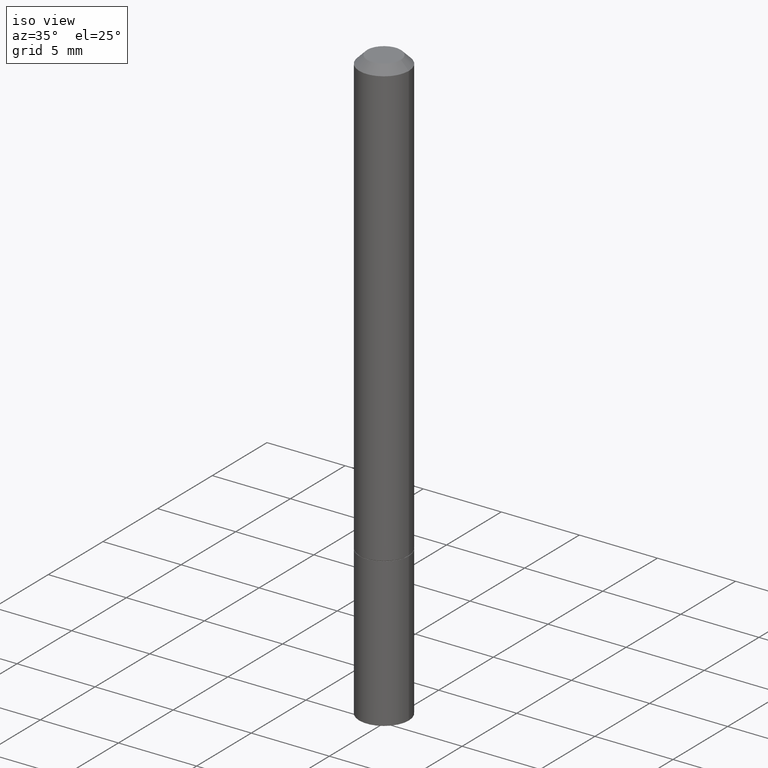
[diagram: clean part render]
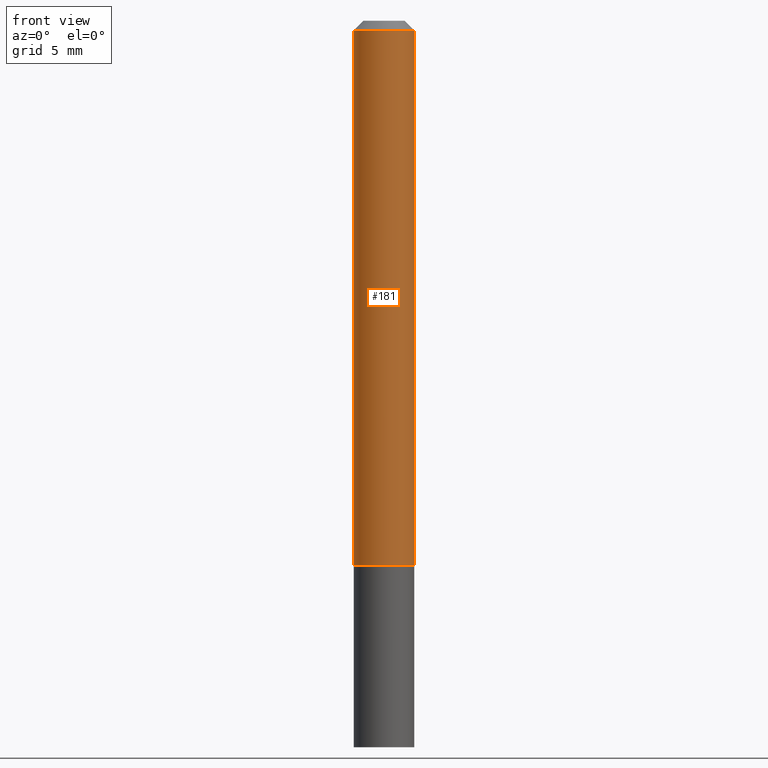
[diagram: tour spotlight — one face highlighted and labeled with its STEP entity id]
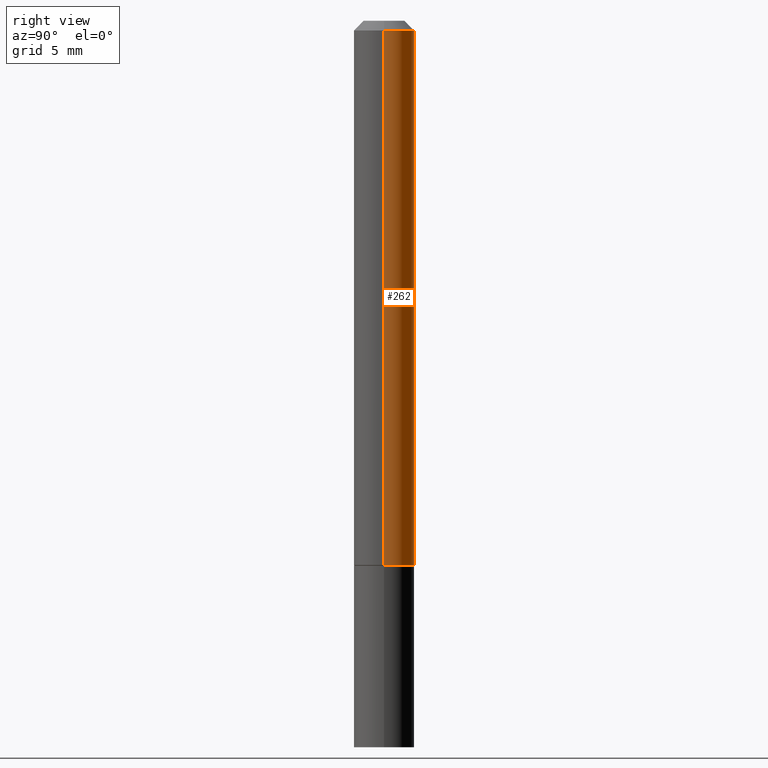
[diagram: tour spotlight — one face highlighted and labeled with its STEP entity id]
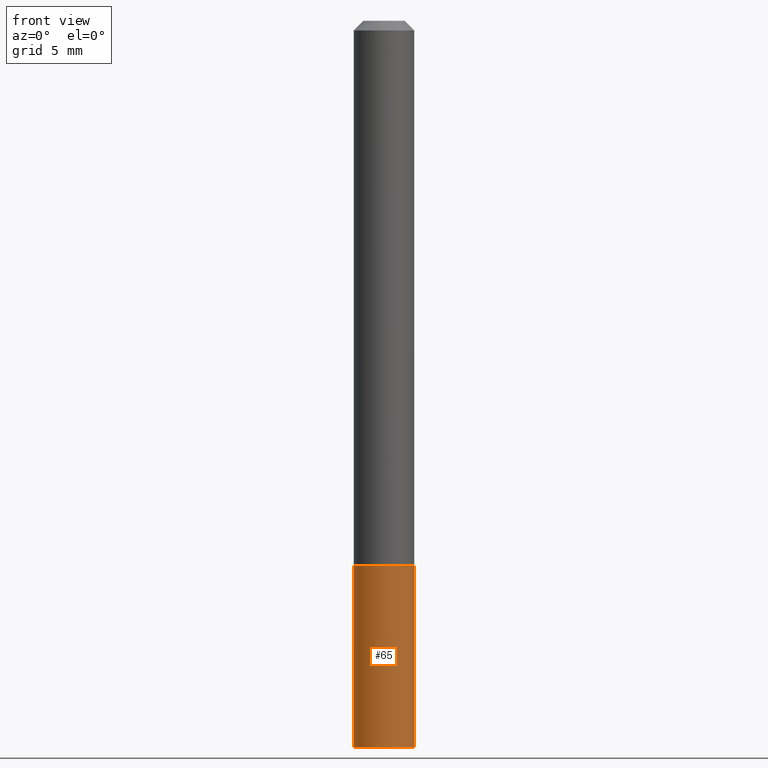
[diagram: tour spotlight — one face highlighted and labeled with its STEP entity id]
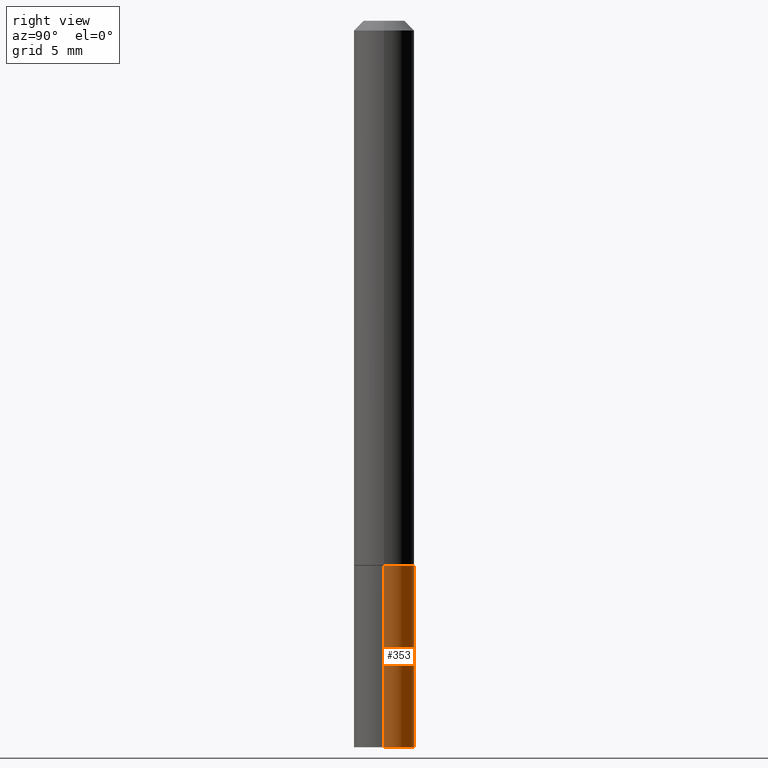
[diagram: tour spotlight — one face highlighted and labeled with its STEP entity id]
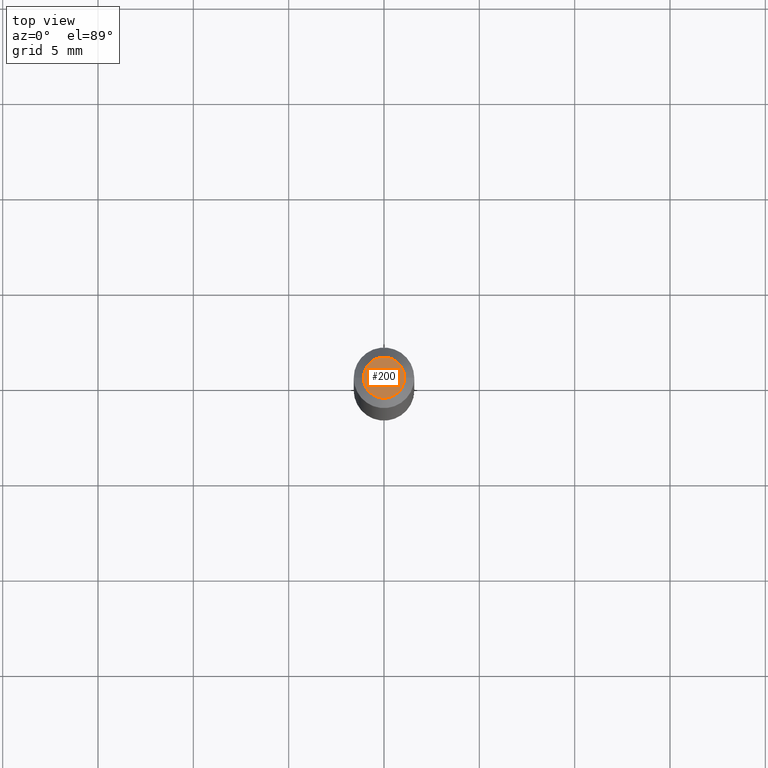
[diagram: tour spotlight — one face highlighted and labeled with its STEP entity id]
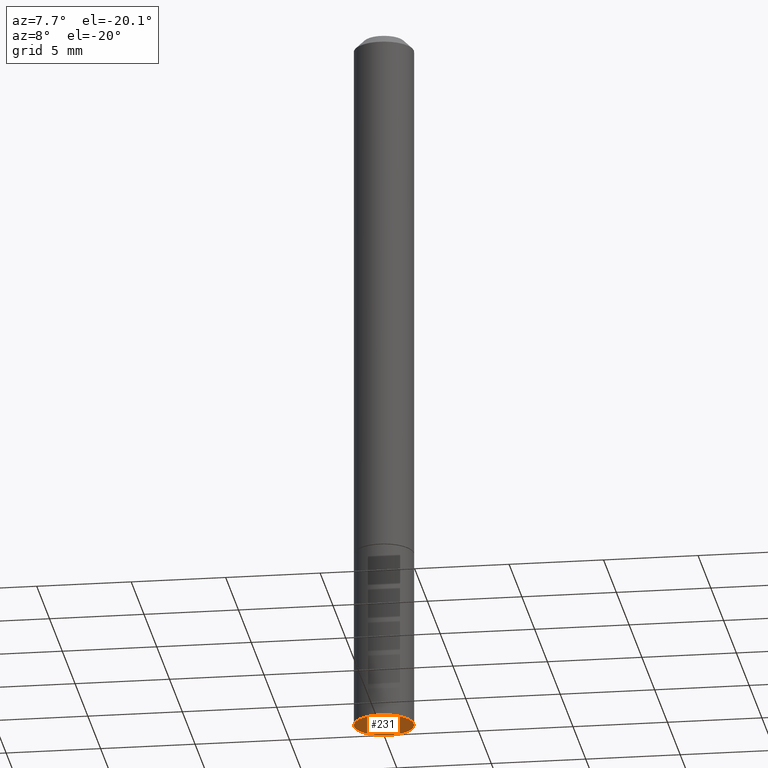
[diagram: tour spotlight — one face highlighted and labeled with its STEP entity id]
A machine part: a face-by-face anatomy tour. The part has 12 B-rep faces; the first image is the clean iso view, then the 6 largest visible faces are spotlighted one at a time (largest first), each with its STEP entity span.

Face 1 — front view, entity #181. In plain terms, the highlighted cylindrical surface (edge-blend (fillet) strip) has radius 1.5875 mm, axis along (-0, 0, 1).
Definition (entity closure, byte-faithful):
#7 = LINE ( 'NONE', #36, #360 ) ;
#9 = DIRECTION ( 'NONE',  ( 1.000000000000000000, -6.982962677686269077E-15, 0.000000000000000000 ) ) ;
#11 = DIRECTION ( 'NONE',  ( -2.445468806185136877E-29, 3.491481338843145188E-15, 1.000000000000000000 ) ) ;
#36 = CARTESIAN_POINT ( 'NONE',  ( -0.06249999999999995143, 4.440892098500622710E-16, -3.074334431409313661E-30 ) ) ;
#40 = VECTOR ( 'NONE', #183, 39.37007874015748143 ) ;
#42 = CARTESIAN_POINT ( 'NONE',  ( 0.06249999999999995143, -4.364351673553913243E-16, 3.047610484872457418E-30 ) ) ;
#49 = DIRECTION ( 'NONE',  ( 1.000000000000000000, -6.982962677686266711E-15, 4.876176775795935793E-29 ) ) ;
#61 = CARTESIAN_POINT ( 'NONE',  ( 2.748706938152094189E-29, -3.924425024859697006E-15, -1.124000000000000332 ) ) ;
#77 = ORIENTED_EDGE ( 'NONE', *, *, #119, .F. ) ;
#91 = EDGE_CURVE ( 'NONE', #290, #248, #103, .T. ) ;
#103 = LINE ( 'NONE', #42, #40 ) ;
#104 = EDGE_CURVE ( 'NONE', #289, #290, #110, .T. ) ;
#107 = AXIS2_PLACEMENT_3D ( 'NONE', #61, #348, #9 ) ;
#110 = CIRCLE ( 'NONE', #107, 0.06250000000000001388 ) ;
#119 = EDGE_CURVE ( 'NONE', #289, #206, #7, .T. ) ;
#168 = ORIENTED_EDGE ( 'NONE', *, *, #91, .T. ) ;
#175 = ORIENTED_EDGE ( 'NONE', *, *, #349, .F. ) ;
#178 = CARTESIAN_POINT ( 'NONE',  ( 0.000000000000000000, 0.000000000000000000, 0.000000000000000000 ) ) ;
#181 = ADVANCED_FACE ( 'NONE', ( #320 ), #243, .T. ) ;
#183 = DIRECTION ( 'NONE',  ( -2.445468806185136877E-29, 3.491481338843145188E-15, 1.000000000000000000 ) ) ;
#184 = DIRECTION ( 'NONE',  ( 1.000000000000000000, -6.982962677686266711E-15, 0.000000000000000000 ) ) ;
#193 = CARTESIAN_POINT ( 'NONE',  ( 0.06249999999999988204, -4.986107516375829362E-16, -0.02000000000000004552 ) ) ;
#203 = CIRCLE ( 'NONE', #352, 0.06249999999999988204 ) ;
#206 = VERTEX_POINT ( 'NONE', #308 ) ;
#225 = ORIENTED_EDGE ( 'NONE', *, *, #104, .T. ) ;
#243 = CYLINDRICAL_SURFACE ( 'NONE', #298, 0.06249999999999995143 ) ;
#248 = VERTEX_POINT ( 'NONE', #193 ) ;
#260 = CARTESIAN_POINT ( 'NONE',  ( 0.06250000000000001388, -4.360860192215088675E-15, -1.124000000000000332 ) ) ;
#269 = DIRECTION ( 'NONE',  ( -2.445468806185136597E-29, 3.491481338843145583E-15, 1.000000000000000000 ) ) ;
#271 = CARTESIAN_POINT ( 'NONE',  ( 4.890937612370284544E-31, -6.982962677686307633E-17, -0.02000000000000004552 ) ) ;
#289 = VERTEX_POINT ( 'NONE', #310 ) ;
#290 = VERTEX_POINT ( 'NONE', #260 ) ;
#292 = DIRECTION ( 'NONE',  ( -2.445468806185136597E-29, 3.491481338843145583E-15, 1.000000000000000000 ) ) ;
#298 = AXIS2_PLACEMENT_3D ( 'NONE', #178, #269, #49 ) ;
#308 = CARTESIAN_POINT ( 'NONE',  ( -0.06249999999999988204, 3.666055405785277303E-16, -0.02000000000000004552 ) ) ;
#310 = CARTESIAN_POINT ( 'NONE',  ( -0.06250000000000001388, -1.553038115968215367E-15, -1.124000000000000332 ) ) ;
#320 = FACE_OUTER_BOUND ( 'NONE', #358, .T. ) ;
#348 = DIRECTION ( 'NONE',  ( -2.445468806185136597E-29, 3.491481338843145583E-15, 1.000000000000000000 ) ) ;
#349 = EDGE_CURVE ( 'NONE', #206, #248, #203, .T. ) ;
#352 = AXIS2_PLACEMENT_3D ( 'NONE', #271, #292, #184 ) ;
#358 = EDGE_LOOP ( 'NONE', ( #77, #225, #168, #175 ) ) ;
#360 = VECTOR ( 'NONE', #11, 39.37007874015748143 ) ;

Face 2 — right view, entity #262. In plain terms, the highlighted cylindrical surface (edge-blend (fillet) strip) has radius 1.5875 mm, axis along (-0, 0, 1).
Definition (entity closure, byte-faithful):
#7 = LINE ( 'NONE', #36, #360 ) ;
#11 = DIRECTION ( 'NONE',  ( -2.445468806185136877E-29, 3.491481338843145188E-15, 1.000000000000000000 ) ) ;
#12 = CIRCLE ( 'NONE', #30, 0.06249999999999988204 ) ;
#16 = ORIENTED_EDGE ( 'NONE', *, *, #59, .F. ) ;
#30 = AXIS2_PLACEMENT_3D ( 'NONE', #105, #126, #100 ) ;
#36 = CARTESIAN_POINT ( 'NONE',  ( -0.06249999999999995143, 4.440892098500622710E-16, -3.074334431409313661E-30 ) ) ;
#40 = VECTOR ( 'NONE', #183, 39.37007874015748143 ) ;
#42 = CARTESIAN_POINT ( 'NONE',  ( 0.06249999999999995143, -4.364351673553913243E-16, 3.047610484872457418E-30 ) ) ;
#46 = DIRECTION ( 'NONE',  ( -2.445468806185136597E-29, 3.491481338843145583E-15, 1.000000000000000000 ) ) ;
#48 = AXIS2_PLACEMENT_3D ( 'NONE', #190, #46, #162 ) ;
#59 = EDGE_CURVE ( 'NONE', #248, #206, #12, .T. ) ;
#66 = DIRECTION ( 'NONE',  ( -2.445468806185136597E-29, 3.491481338843145583E-15, 1.000000000000000000 ) ) ;
#91 = EDGE_CURVE ( 'NONE', #290, #248, #103, .T. ) ;
#100 = DIRECTION ( 'NONE',  ( 1.000000000000000000, -6.982962677686266711E-15, 0.000000000000000000 ) ) ;
#103 = LINE ( 'NONE', #42, #40 ) ;
#105 = CARTESIAN_POINT ( 'NONE',  ( 4.890937612370284544E-31, -6.982962677686307633E-17, -0.02000000000000004552 ) ) ;
#112 = ORIENTED_EDGE ( 'NONE', *, *, #119, .T. ) ;
#119 = EDGE_CURVE ( 'NONE', #289, #206, #7, .T. ) ;
#126 = DIRECTION ( 'NONE',  ( -2.445468806185136597E-29, 3.491481338843145583E-15, 1.000000000000000000 ) ) ;
#129 = CIRCLE ( 'NONE', #223, 0.06250000000000001388 ) ;
#162 = DIRECTION ( 'NONE',  ( 1.000000000000000000, -6.982962677686266711E-15, 4.876176775795935793E-29 ) ) ;
#183 = DIRECTION ( 'NONE',  ( -2.445468806185136877E-29, 3.491481338843145188E-15, 1.000000000000000000 ) ) ;
#190 = CARTESIAN_POINT ( 'NONE',  ( 0.000000000000000000, 0.000000000000000000, 0.000000000000000000 ) ) ;
#193 = CARTESIAN_POINT ( 'NONE',  ( 0.06249999999999988204, -4.986107516375829362E-16, -0.02000000000000004552 ) ) ;
#206 = VERTEX_POINT ( 'NONE', #308 ) ;
#223 = AXIS2_PLACEMENT_3D ( 'NONE', #229, #66, #293 ) ;
#229 = CARTESIAN_POINT ( 'NONE',  ( 2.748706938152094189E-29, -3.924425024859697006E-15, -1.124000000000000332 ) ) ;
#235 = EDGE_LOOP ( 'NONE', ( #261, #112, #16, #338 ) ) ;
#248 = VERTEX_POINT ( 'NONE', #193 ) ;
#260 = CARTESIAN_POINT ( 'NONE',  ( 0.06250000000000001388, -4.360860192215088675E-15, -1.124000000000000332 ) ) ;
#261 = ORIENTED_EDGE ( 'NONE', *, *, #297, .T. ) ;
#262 = ADVANCED_FACE ( 'NONE', ( #274 ), #329, .T. ) ;
#274 = FACE_OUTER_BOUND ( 'NONE', #235, .T. ) ;
#289 = VERTEX_POINT ( 'NONE', #310 ) ;
#290 = VERTEX_POINT ( 'NONE', #260 ) ;
#293 = DIRECTION ( 'NONE',  ( 1.000000000000000000, -6.982962677686269077E-15, 0.000000000000000000 ) ) ;
#297 = EDGE_CURVE ( 'NONE', #290, #289, #129, .T. ) ;
#308 = CARTESIAN_POINT ( 'NONE',  ( -0.06249999999999988204, 3.666055405785277303E-16, -0.02000000000000004552 ) ) ;
#310 = CARTESIAN_POINT ( 'NONE',  ( -0.06250000000000001388, -1.553038115968215367E-15, -1.124000000000000332 ) ) ;
#329 = CYLINDRICAL_SURFACE ( 'NONE', #48, 0.06249999999999995143 ) ;
#338 = ORIENTED_EDGE ( 'NONE', *, *, #91, .F. ) ;
#360 = VECTOR ( 'NONE', #11, 39.37007874015748143 ) ;

Face 3 — front view, entity #65. In plain terms, the highlighted cylindrical surface (edge-blend (fillet) strip) has radius 1.5875 mm, axis along (-0, 0, 1).
Definition (entity closure, byte-faithful):
#15 = DIRECTION ( 'NONE',  ( 1.000000000000000000, -6.982962677686269077E-15, 0.000000000000000000 ) ) ;
#32 = VERTEX_POINT ( 'NONE', #97 ) ;
#41 = CARTESIAN_POINT ( 'NONE',  ( -0.06250000000000001388, -4.138480047381567268E-15, -1.125000000000000444 ) ) ;
#60 = ORIENTED_EDGE ( 'NONE', *, *, #238, .F. ) ;
#65 = ADVANCED_FACE ( 'NONE', ( #322 ), #67, .T. ) ;
#67 = CYLINDRICAL_SURFACE ( 'NONE', #234, 0.06250000000000001388 ) ;
#70 = DIRECTION ( 'NONE',  ( 1.000000000000000000, -6.982962677686261189E-15, 0.000000000000000000 ) ) ;
#74 = CARTESIAN_POINT ( 'NONE',  ( -0.06250000000000001388, 4.440892098500627148E-16, -3.074334431409317165E-30 ) ) ;
#81 = ORIENTED_EDGE ( 'NONE', *, *, #123, .T. ) ;
#97 = CARTESIAN_POINT ( 'NONE',  ( 0.06250000000000001388, -4.364351673553932471E-15, -1.125000000000000444 ) ) ;
#123 = EDGE_CURVE ( 'NONE', #142, #138, #149, .T. ) ;
#124 = DIRECTION ( 'NONE',  ( -2.445468806185136597E-29, 3.491481338843145583E-15, 1.000000000000000000 ) ) ;
#128 = CARTESIAN_POINT ( 'NONE',  ( -0.06250000000000001388, -4.138480047381567268E-15, -1.500000000000000444 ) ) ;
#135 = LINE ( 'NONE', #74, #339 ) ;
#138 = VERTEX_POINT ( 'NONE', #185 ) ;
#142 = VERTEX_POINT ( 'NONE', #128 ) ;
#145 = AXIS2_PLACEMENT_3D ( 'NONE', #304, #191, #15 ) ;
#146 = ORIENTED_EDGE ( 'NONE', *, *, #187, .F. ) ;
#149 = CIRCLE ( 'NONE', #321, 0.06250000000000001388 ) ;
#154 = CARTESIAN_POINT ( 'NONE',  ( 3.668203209277706016E-29, -5.237222008264719754E-15, -1.500000000000000444 ) ) ;
#166 = DIRECTION ( 'NONE',  ( -2.445468806185136877E-29, 3.491481338843145188E-15, 1.000000000000000000 ) ) ;
#170 = ORIENTED_EDGE ( 'NONE', *, *, #195, .T. ) ;
#185 = CARTESIAN_POINT ( 'NONE',  ( 0.06250000000000001388, -5.673657175620110635E-15, -1.500000000000000444 ) ) ;
#187 = EDGE_CURVE ( 'NONE', #332, #32, #305, .T. ) ;
#191 = DIRECTION ( 'NONE',  ( -2.445468806185136597E-29, 3.491481338843145583E-15, 1.000000000000000000 ) ) ;
#194 = EDGE_LOOP ( 'NONE', ( #60, #81, #170, #146 ) ) ;
#195 = EDGE_CURVE ( 'NONE', #138, #32, #196, .T. ) ;
#196 = LINE ( 'NONE', #306, #314 ) ;
#216 = CARTESIAN_POINT ( 'NONE',  ( 0.000000000000000000, 0.000000000000000000, 0.000000000000000000 ) ) ;
#234 = AXIS2_PLACEMENT_3D ( 'NONE', #216, #240, #351 ) ;
#238 = EDGE_CURVE ( 'NONE', #142, #332, #135, .T. ) ;
#240 = DIRECTION ( 'NONE',  ( -2.445468806185136597E-29, 3.491481338843145583E-15, 1.000000000000000000 ) ) ;
#250 = DIRECTION ( 'NONE',  ( -2.445468806185136877E-29, 3.491481338843145188E-15, 1.000000000000000000 ) ) ;
#304 = CARTESIAN_POINT ( 'NONE',  ( 2.751152406958279792E-29, -3.927916506198540013E-15, -1.125000000000000444 ) ) ;
#305 = CIRCLE ( 'NONE', #145, 0.06250000000000001388 ) ;
#306 = CARTESIAN_POINT ( 'NONE',  ( 0.06250000000000001388, -4.364351673553918173E-16, 3.047610484872460571E-30 ) ) ;
#314 = VECTOR ( 'NONE', #166, 39.37007874015748143 ) ;
#321 = AXIS2_PLACEMENT_3D ( 'NONE', #154, #124, #70 ) ;
#322 = FACE_OUTER_BOUND ( 'NONE', #194, .T. ) ;
#332 = VERTEX_POINT ( 'NONE', #41 ) ;
#339 = VECTOR ( 'NONE', #250, 39.37007874015748143 ) ;
#351 = DIRECTION ( 'NONE',  ( 1.000000000000000000, -6.982962677686267499E-15, 4.876176775795935793E-29 ) ) ;

Face 4 — right view, entity #353. In plain terms, the highlighted cylindrical surface (edge-blend (fillet) strip) has radius 1.5875 mm, axis along (-0, 0, 1).
Definition (entity closure, byte-faithful):
#13 = DIRECTION ( 'NONE',  ( -2.445468806185136597E-29, 3.491481338843145583E-15, 1.000000000000000000 ) ) ;
#14 = CARTESIAN_POINT ( 'NONE',  ( 3.668203209277706016E-29, -5.237222008264719754E-15, -1.500000000000000444 ) ) ;
#32 = VERTEX_POINT ( 'NONE', #97 ) ;
#37 = FACE_OUTER_BOUND ( 'NONE', #130, .T. ) ;
#41 = CARTESIAN_POINT ( 'NONE',  ( -0.06250000000000001388, -4.138480047381567268E-15, -1.125000000000000444 ) ) ;
#63 = AXIS2_PLACEMENT_3D ( 'NONE', #159, #13, #68 ) ;
#68 = DIRECTION ( 'NONE',  ( 1.000000000000000000, -6.982962677686267499E-15, 4.876176775795935793E-29 ) ) ;
#74 = CARTESIAN_POINT ( 'NONE',  ( -0.06250000000000001388, 4.440892098500627148E-16, -3.074334431409317165E-30 ) ) ;
#94 = ORIENTED_EDGE ( 'NONE', *, *, #195, .F. ) ;
#97 = CARTESIAN_POINT ( 'NONE',  ( 0.06250000000000001388, -4.364351673553932471E-15, -1.125000000000000444 ) ) ;
#101 = CIRCLE ( 'NONE', #163, 0.06250000000000001388 ) ;
#102 = CARTESIAN_POINT ( 'NONE',  ( 2.751152406958279792E-29, -3.927916506198540013E-15, -1.125000000000000444 ) ) ;
#125 = CYLINDRICAL_SURFACE ( 'NONE', #63, 0.06250000000000001388 ) ;
#128 = CARTESIAN_POINT ( 'NONE',  ( -0.06250000000000001388, -4.138480047381567268E-15, -1.500000000000000444 ) ) ;
#130 = EDGE_LOOP ( 'NONE', ( #265, #366, #282, #94 ) ) ;
#131 = EDGE_CURVE ( 'NONE', #138, #142, #101, .T. ) ;
#135 = LINE ( 'NONE', #74, #339 ) ;
#138 = VERTEX_POINT ( 'NONE', #185 ) ;
#140 = CIRCLE ( 'NONE', #199, 0.06250000000000001388 ) ;
#142 = VERTEX_POINT ( 'NONE', #128 ) ;
#152 = EDGE_CURVE ( 'NONE', #32, #332, #140, .T. ) ;
#159 = CARTESIAN_POINT ( 'NONE',  ( 0.000000000000000000, 0.000000000000000000, 0.000000000000000000 ) ) ;
#163 = AXIS2_PLACEMENT_3D ( 'NONE', #14, #318, #237 ) ;
#166 = DIRECTION ( 'NONE',  ( -2.445468806185136877E-29, 3.491481338843145188E-15, 1.000000000000000000 ) ) ;
#185 = CARTESIAN_POINT ( 'NONE',  ( 0.06250000000000001388, -5.673657175620110635E-15, -1.500000000000000444 ) ) ;
#195 = EDGE_CURVE ( 'NONE', #138, #32, #196, .T. ) ;
#196 = LINE ( 'NONE', #306, #314 ) ;
#199 = AXIS2_PLACEMENT_3D ( 'NONE', #102, #295, #211 ) ;
#211 = DIRECTION ( 'NONE',  ( 1.000000000000000000, -6.982962677686269077E-15, 0.000000000000000000 ) ) ;
#237 = DIRECTION ( 'NONE',  ( 1.000000000000000000, -6.982962677686261189E-15, 0.000000000000000000 ) ) ;
#238 = EDGE_CURVE ( 'NONE', #142, #332, #135, .T. ) ;
#250 = DIRECTION ( 'NONE',  ( -2.445468806185136877E-29, 3.491481338843145188E-15, 1.000000000000000000 ) ) ;
#265 = ORIENTED_EDGE ( 'NONE', *, *, #131, .T. ) ;
#282 = ORIENTED_EDGE ( 'NONE', *, *, #152, .F. ) ;
#295 = DIRECTION ( 'NONE',  ( -2.445468806185136597E-29, 3.491481338843145583E-15, 1.000000000000000000 ) ) ;
#306 = CARTESIAN_POINT ( 'NONE',  ( 0.06250000000000001388, -4.364351673553918173E-16, 3.047610484872460571E-30 ) ) ;
#314 = VECTOR ( 'NONE', #166, 39.37007874015748143 ) ;
#318 = DIRECTION ( 'NONE',  ( -2.445468806185136597E-29, 3.491481338843145583E-15, 1.000000000000000000 ) ) ;
#332 = VERTEX_POINT ( 'NONE', #41 ) ;
#339 = VECTOR ( 'NONE', #250, 39.37007874015748143 ) ;
#353 = ADVANCED_FACE ( 'NONE', ( #37 ), #125, .T. ) ;
#366 = ORIENTED_EDGE ( 'NONE', *, *, #238, .T. ) ;

Face 5 — top view, entity #200. In plain terms, the highlighted planar face has unit normal (0, -0, -1).
Definition (entity closure, byte-faithful):
#10 = DIRECTION ( 'NONE',  ( 1.000000000000000000, -6.982962677686267499E-15, 4.879498284297452955E-29 ) ) ;
#19 = DIRECTION ( 'NONE',  ( 2.438088387897960049E-29, -3.491481338843145188E-15, -1.000000000000000000 ) ) ;
#44 = DIRECTION ( 'NONE',  ( 1.000000000000000000, -6.982962677686267499E-15, 4.879498284297452955E-29 ) ) ;
#76 = DIRECTION ( 'NONE',  ( -2.445468806185136597E-29, 3.491481338843145583E-15, 1.000000000000000000 ) ) ;
#80 = PLANE ( 'NONE',  #158 ) ;
#117 = CARTESIAN_POINT ( 'NONE',  ( 0.04249999999999991979, -3.950909582714363008E-16, -2.561107494060004870E-17 ) ) ;
#139 = CIRCLE ( 'NONE', #365, 0.04249999999999991979 ) ;
#148 = AXIS2_PLACEMENT_3D ( 'NONE', #188, #76, #44 ) ;
#153 = CARTESIAN_POINT ( 'NONE',  ( 6.263108486011318528E-46, -8.942059022282683748E-32, -2.561107494060246767E-17 ) ) ;
#158 = AXIS2_PLACEMENT_3D ( 'NONE', #279, #19, #301 ) ;
#164 = FACE_OUTER_BOUND ( 'NONE', #172, .T. ) ;
#172 = EDGE_LOOP ( 'NONE', ( #278, #284 ) ) ;
#188 = CARTESIAN_POINT ( 'NONE',  ( 6.263108486011318528E-46, -8.942059022282683748E-32, -2.561107494060246767E-17 ) ) ;
#200 = ADVANCED_FACE ( 'NONE', ( #164 ), #80, .F. ) ;
#236 = CARTESIAN_POINT ( 'NONE',  ( -0.04249999999999991979, 3.316907271900967221E-16, -2.561107494060466786E-17 ) ) ;
#239 = DIRECTION ( 'NONE',  ( -2.445468806185136597E-29, 3.491481338843145583E-15, 1.000000000000000000 ) ) ;
#249 = EDGE_CURVE ( 'NONE', #335, #342, #287, .T. ) ;
#278 = ORIENTED_EDGE ( 'NONE', *, *, #249, .T. ) ;
#279 = CARTESIAN_POINT ( 'NONE',  ( 2.967759138016657633E-16, 0.04249999999999991979, -1.611934943711346547E-16 ) ) ;
#284 = ORIENTED_EDGE ( 'NONE', *, *, #323, .T. ) ;
#287 = CIRCLE ( 'NONE', #148, 0.04249999999999991979 ) ;
#301 = DIRECTION ( 'NONE',  ( -1.000000000000000000, 6.982962677686265922E-15, -4.876176775795935793E-29 ) ) ;
#323 = EDGE_CURVE ( 'NONE', #342, #335, #139, .T. ) ;
#335 = VERTEX_POINT ( 'NONE', #236 ) ;
#342 = VERTEX_POINT ( 'NONE', #117 ) ;
#365 = AXIS2_PLACEMENT_3D ( 'NONE', #153, #239, #10 ) ;

Face 6 — auxiliary view, entity #231. In plain terms, the highlighted planar face has unit normal (0, -0, -1).
Definition (entity closure, byte-faithful):
#14 = CARTESIAN_POINT ( 'NONE',  ( 3.668203209277706016E-29, -5.237222008264719754E-15, -1.500000000000000444 ) ) ;
#70 = DIRECTION ( 'NONE',  ( 1.000000000000000000, -6.982962677686261189E-15, 0.000000000000000000 ) ) ;
#78 = DIRECTION ( 'NONE',  ( 2.438088387897960049E-29, -3.491481338843145188E-15, -1.000000000000000000 ) ) ;
#95 = AXIS2_PLACEMENT_3D ( 'NONE', #363, #78, #222 ) ;
#101 = CIRCLE ( 'NONE', #163, 0.06250000000000001388 ) ;
#123 = EDGE_CURVE ( 'NONE', #142, #138, #149, .T. ) ;
#124 = DIRECTION ( 'NONE',  ( -2.445468806185136597E-29, 3.491481338843145583E-15, 1.000000000000000000 ) ) ;
#128 = CARTESIAN_POINT ( 'NONE',  ( -0.06250000000000001388, -4.138480047381567268E-15, -1.500000000000000444 ) ) ;
#131 = EDGE_CURVE ( 'NONE', #138, #142, #101, .T. ) ;
#134 = EDGE_LOOP ( 'NONE', ( #257, #245 ) ) ;
#138 = VERTEX_POINT ( 'NONE', #185 ) ;
#142 = VERTEX_POINT ( 'NONE', #128 ) ;
#149 = CIRCLE ( 'NONE', #321, 0.06250000000000001388 ) ;
#154 = CARTESIAN_POINT ( 'NONE',  ( 3.668203209277706016E-29, -5.237222008264719754E-15, -1.500000000000000444 ) ) ;
#163 = AXIS2_PLACEMENT_3D ( 'NONE', #14, #318, #237 ) ;
#185 = CARTESIAN_POINT ( 'NONE',  ( 0.06250000000000001388, -5.673657175620110635E-15, -1.500000000000000444 ) ) ;
#222 = DIRECTION ( 'NONE',  ( -1.000000000000000000, 6.982962677686265922E-15, -4.876176775795935793E-29 ) ) ;
#231 = ADVANCED_FACE ( 'NONE', ( #252 ), #277, .T. ) ;
#237 = DIRECTION ( 'NONE',  ( 1.000000000000000000, -6.982962677686261189E-15, 0.000000000000000000 ) ) ;
#245 = ORIENTED_EDGE ( 'NONE', *, *, #123, .F. ) ;
#252 = FACE_OUTER_BOUND ( 'NONE', #134, .T. ) ;
#257 = ORIENTED_EDGE ( 'NONE', *, *, #131, .F. ) ;
#277 = PLANE ( 'NONE',  #95 ) ;
#318 = DIRECTION ( 'NONE',  ( -2.445468806185136597E-29, 3.491481338843145583E-15, 1.000000000000000000 ) ) ;
#321 = AXIS2_PLACEMENT_3D ( 'NONE', #154, #124, #70 ) ;
#363 = CARTESIAN_POINT ( 'NONE',  ( 4.364351673554284500E-16, 0.06249999999999478195, -1.500000000000000666 ) ) ;